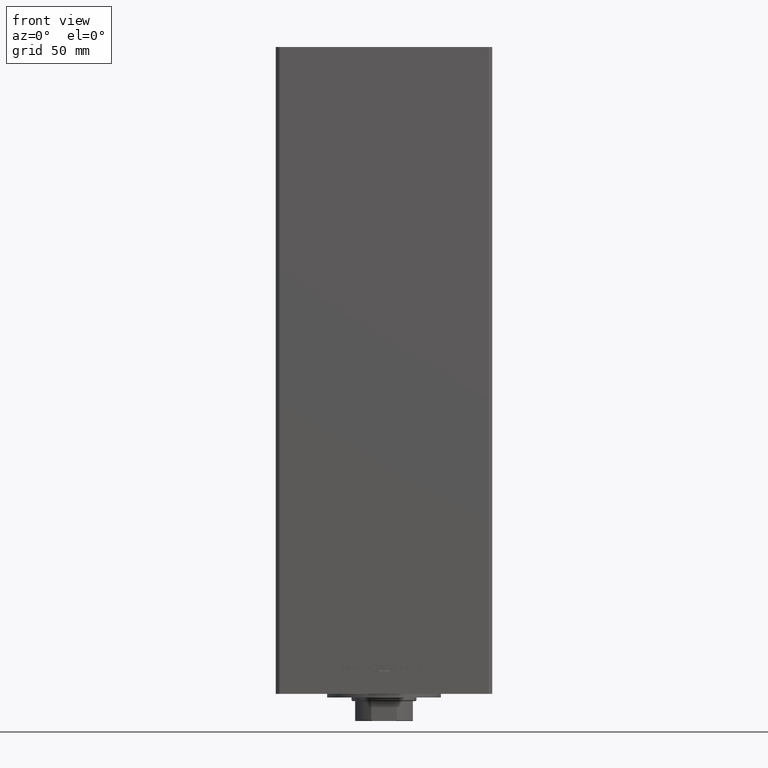
[diagram: clean part render]
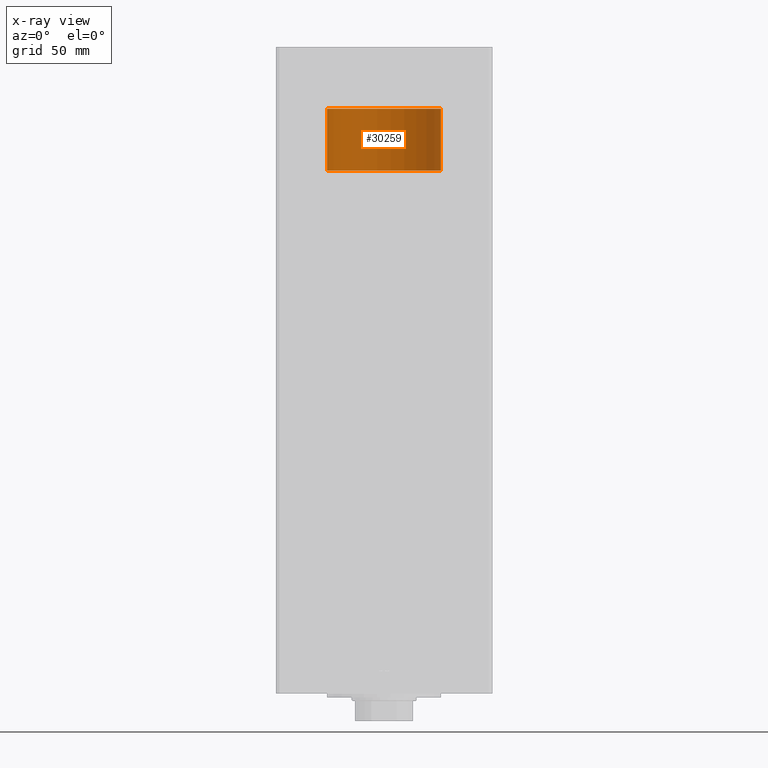
[diagram: x-ray — body ghosted, one internal face saturated and labeled with its STEP entity id]
A machine part, front view, then the same camera in x-ray: the body is ghosted and one INTERNAL B-rep face — a face not visible from any outside direction — is saturated and labeled: STEP entity #30259.
In plain terms, the highlighted cylindrical surface (partial cylindrical patch) has radius 31.5 mm, axis along (0, -0, 1).
Its self-contained STEP definition (entity closure, byte-faithful):
#7 = FACE_OUTER_BOUND ( 'NONE', #42255, .T. ) ;
#3858 = AXIS2_PLACEMENT_3D ( 'NONE', #35852, #14890, #44702 ) ;
#4231 = DIRECTION ( 'NONE',  ( -1.000000000000000000, 0.000000000000000000, 0.000000000000000000 ) ) ;
#5167 = ORIENTED_EDGE ( 'NONE', *, *, #27174, .F. ) ;
#6389 = CARTESIAN_POINT ( 'NONE',  ( 31.50000000000000000, 3.857637417314162689E-15, 0.000000000000000000 ) ) ;
#6495 = VERTEX_POINT ( 'NONE', #22923 ) ;
#10840 = VERTEX_POINT ( 'NONE', #46756 ) ;
#11199 = DIRECTION ( 'NONE',  ( -0.000000000000000000, -0.000000000000000000, -1.000000000000000000 ) ) ;
#14124 = AXIS2_PLACEMENT_3D ( 'NONE', #45734, #11199, #4231 ) ;
#14890 = DIRECTION ( 'NONE',  ( 0.000000000000000000, 0.000000000000000000, 1.000000000000000000 ) ) ;
#14932 = CYLINDRICAL_SURFACE ( 'NONE', #14124, 31.50000000000000000 ) ;
#18683 = CARTESIAN_POINT ( 'NONE',  ( -31.50000000000000000, 0.000000000000000000, 0.000000000000000000 ) ) ;
#19046 = CARTESIAN_POINT ( 'NONE',  ( -31.50000000000000000, 0.000000000000000000, 34.25000000000000000 ) ) ;
#22923 = CARTESIAN_POINT ( 'NONE',  ( -31.50000000000000000, 0.000000000000000000, 34.25000000000000000 ) ) ;
#23932 = VERTEX_POINT ( 'NONE', #18683 ) ;
#25250 = DIRECTION ( 'NONE',  ( 0.000000000000000000, 0.000000000000000000, 1.000000000000000000 ) ) ;
#25973 = DIRECTION ( 'NONE',  ( -0.000000000000000000, -0.000000000000000000, -1.000000000000000000 ) ) ;
#27174 = EDGE_CURVE ( 'NONE', #6495, #23932, #32777, .T. ) ;
#27658 = CIRCLE ( 'NONE', #3858, 31.50000000000000000 ) ;
#27759 = EDGE_CURVE ( 'NONE', #10840, #6495, #33902, .T. ) ;
#29224 = CARTESIAN_POINT ( 'NONE',  ( 0.000000000000000000, 0.000000000000000000, 34.25000000000000000 ) ) ;
#30259 = ADVANCED_FACE ( 'NONE', ( #7 ), #14932, .T. ) ;
#32302 = VECTOR ( 'NONE', #47698, 1000.000000000000000 ) ;
#32777 = LINE ( 'NONE', #19046, #32302 ) ;
#33902 = CIRCLE ( 'NONE', #46598, 31.50000000000000000 ) ;
#34657 = LINE ( 'NONE', #37401, #47944 ) ;
#35309 = EDGE_CURVE ( 'NONE', #41527, #23932, #27658, .T. ) ;
#35852 = CARTESIAN_POINT ( 'NONE',  ( 0.000000000000000000, 0.000000000000000000, 0.000000000000000000 ) ) ;
#36026 = ORIENTED_EDGE ( 'NONE', *, *, #27759, .F. ) ;
#37401 = CARTESIAN_POINT ( 'NONE',  ( 31.50000000000000000, 3.857637417314162689E-15, 34.25000000000000000 ) ) ;
#39837 = ORIENTED_EDGE ( 'NONE', *, *, #42869, .T. ) ;
#39924 = DIRECTION ( 'NONE',  ( 1.000000000000000000, 0.000000000000000000, 0.000000000000000000 ) ) ;
#41527 = VERTEX_POINT ( 'NONE', #6389 ) ;
#41958 = ORIENTED_EDGE ( 'NONE', *, *, #35309, .T. ) ;
#42255 = EDGE_LOOP ( 'NONE', ( #36026, #39837, #41958, #5167 ) ) ;
#42869 = EDGE_CURVE ( 'NONE', #10840, #41527, #34657, .T. ) ;
#44702 = DIRECTION ( 'NONE',  ( 1.000000000000000000, 0.000000000000000000, 0.000000000000000000 ) ) ;
#45734 = CARTESIAN_POINT ( 'NONE',  ( 0.000000000000000000, 0.000000000000000000, 34.25000000000000000 ) ) ;
#46598 = AXIS2_PLACEMENT_3D ( 'NONE', #29224, #25250, #39924 ) ;
#46756 = CARTESIAN_POINT ( 'NONE',  ( 31.50000000000000000, 3.857637417314162689E-15, 34.25000000000000000 ) ) ;
#47698 = DIRECTION ( 'NONE',  ( -0.000000000000000000, -0.000000000000000000, -1.000000000000000000 ) ) ;
#47944 = VECTOR ( 'NONE', #25973, 1000.000000000000000 ) ;